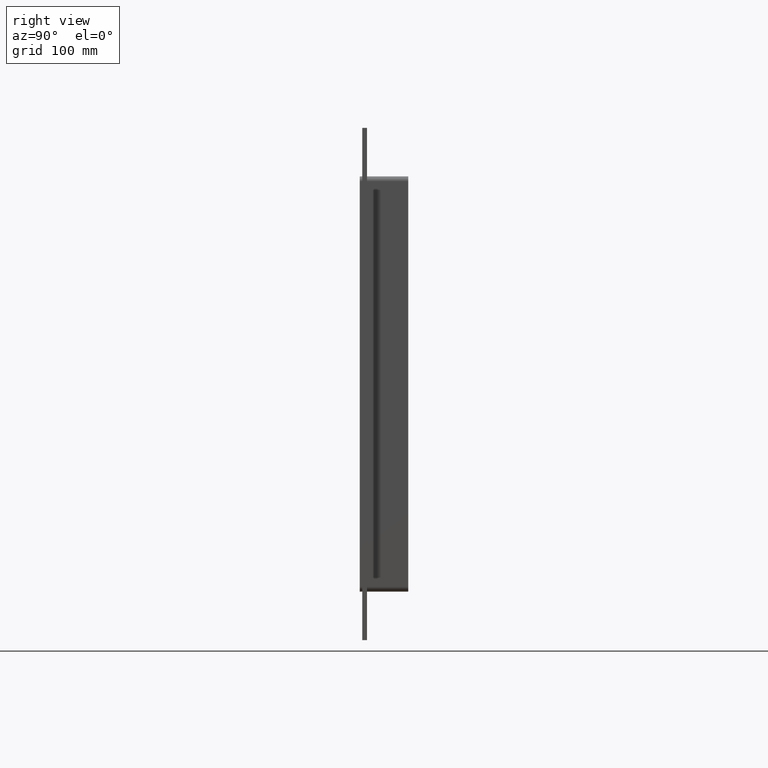
[diagram: clean part render]
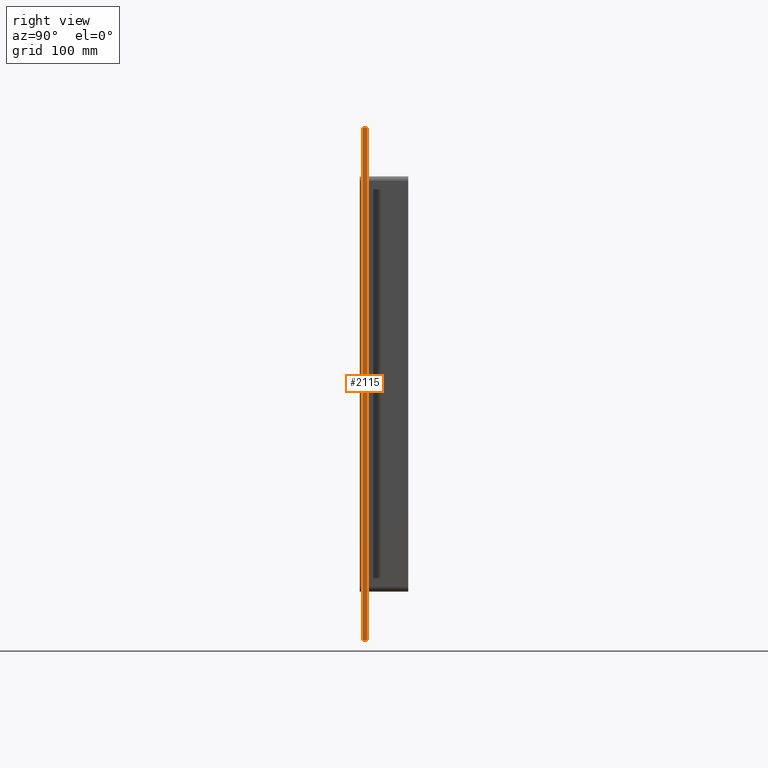
[diagram: same view with one face highlighted and labeled with its STEP entity id]
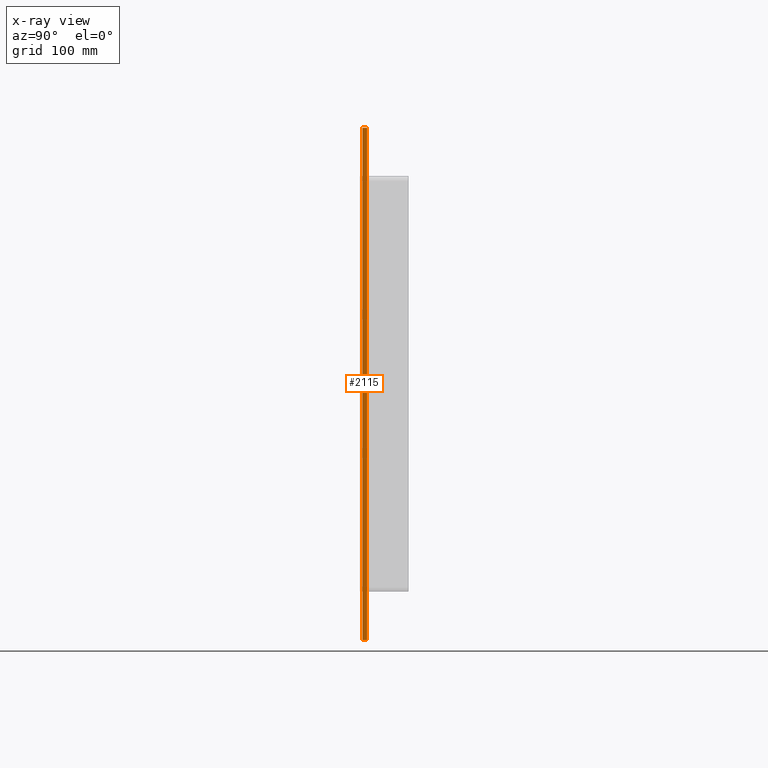
[diagram: x-ray of the same camera — body ghosted, the highlighted face saturated]
A machine part, right view. The second image highlights one B-rep face of the part: STEP entity #2115.
The next image is the same camera in x-ray: the body ghosted, the highlighted face saturated — about 0% of this face is hidden behind the body in this view.
In plain terms, the highlighted planar face has unit normal (1, 0, 0).
Its self-contained STEP definition (entity closure, byte-faithful):
#1847=CARTESIAN_POINT('',(322.00000000000011,6.000000000000001,317.25));
#1848=VERTEX_POINT('',#1847);
#1855=CARTESIAN_POINT('',(322.00000000000011,6.000000000000001,-317.25000000000011));
#1856=VERTEX_POINT('',#1855);
#1857=CARTESIAN_POINT('',(322.00000000000011,6.000000000000001,317.25));
#1858=DIRECTION('',(0.0,0.0,-1.0));
#1859=VECTOR('',#1858,634.50000000000011);
#1860=LINE('',#1857,#1859);
#1861=EDGE_CURVE('',#1848,#1856,#1860,.T.);
#1957=CARTESIAN_POINT('',(322.00000000000011,0.0,317.25));
#1958=VERTEX_POINT('',#1957);
#1973=CARTESIAN_POINT('',(322.00000000000011,0.0,-317.25000000000011));
#1974=VERTEX_POINT('',#1973);
#1981=CARTESIAN_POINT('',(322.00000000000011,0.0,317.25));
#1982=DIRECTION('',(0.0,0.0,-1.0));
#1983=VECTOR('',#1982,634.50000000000011);
#1984=LINE('',#1981,#1983);
#1985=EDGE_CURVE('',#1958,#1974,#1984,.T.);
#2090=CARTESIAN_POINT('',(322.00000000000011,0.0,-317.25000000000011));
#2091=DIRECTION('',(0.0,1.0,0.0));
#2092=VECTOR('',#2091,6.000000000000001);
#2093=LINE('',#2090,#2092);
#2094=EDGE_CURVE('',#1974,#1856,#2093,.T.);
#2099=CARTESIAN_POINT('',(322.00000000000011,0.0,317.25));
#2100=DIRECTION('',(1.0,0.0,0.0));
#2101=DIRECTION('',(0.0,0.0,-1.0));
#2102=AXIS2_PLACEMENT_3D('',#2099,#2100,#2101);
#2103=PLANE('',#2102);
#2104=ORIENTED_EDGE('',*,*,#1985,.T.);
#2105=ORIENTED_EDGE('',*,*,#2094,.T.);
#2106=ORIENTED_EDGE('',*,*,#1861,.F.);
#2107=CARTESIAN_POINT('',(322.00000000000011,0.0,317.25));
#2108=DIRECTION('',(0.0,1.0,0.0));
#2109=VECTOR('',#2108,6.000000000000001);
#2110=LINE('',#2107,#2109);
#2111=EDGE_CURVE('',#1958,#1848,#2110,.T.);
#2112=ORIENTED_EDGE('',*,*,#2111,.F.);
#2113=EDGE_LOOP('',(#2104,#2105,#2106,#2112));
#2114=FACE_OUTER_BOUND('',#2113,.T.);
#2115=ADVANCED_FACE('',(#2114),#2103,.T.);